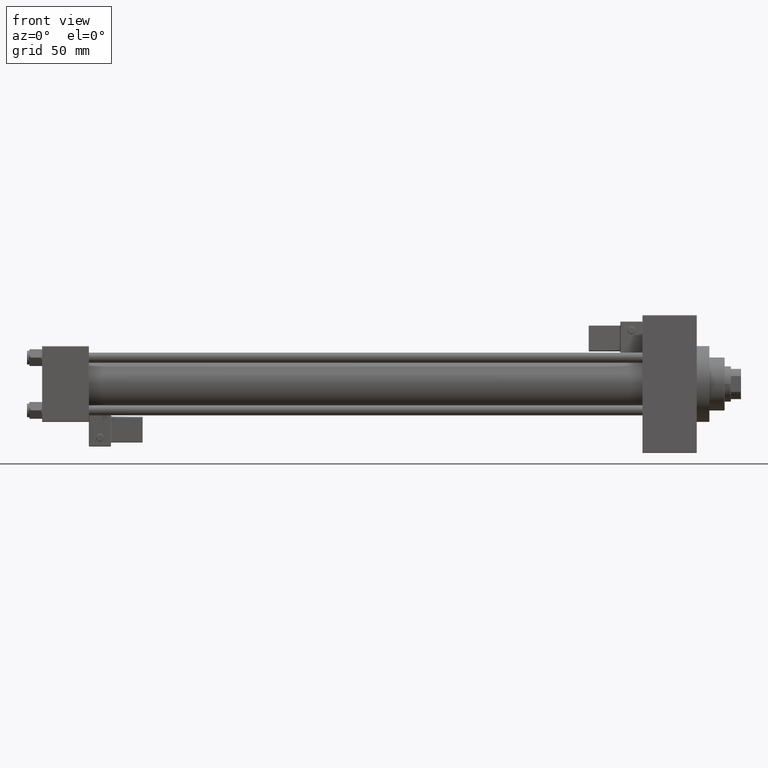
[diagram: clean part render]
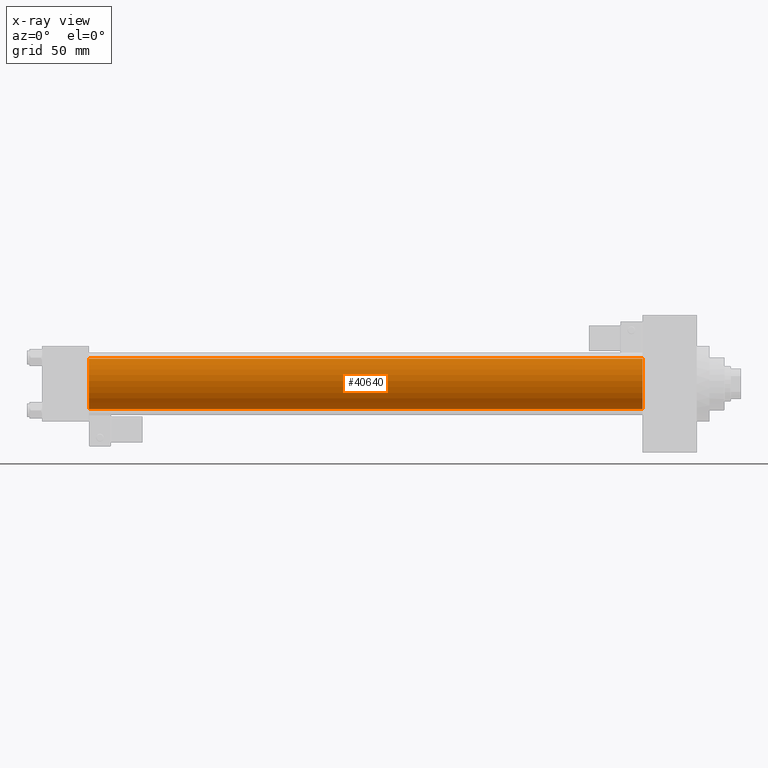
[diagram: x-ray — body ghosted, one internal face saturated and labeled with its STEP entity id]
A machine part, front view, then the same camera in x-ray: the body is ghosted and one INTERNAL B-rep face — a face not visible from any outside direction — is saturated and labeled: STEP entity #40640.
In plain terms, the highlighted cylindrical surface (edge-blend (fillet) strip) has radius 20 mm, axis along (-1, -0, -0).
Its self-contained STEP definition (entity closure, byte-faithful):
#731 = EDGE_CURVE ( 'NONE', #13273, #2124, #47245, .T. ) ;
#2124 = VERTEX_POINT ( 'NONE', #49673 ) ;
#4754 = CIRCLE ( 'NONE', #47325, 20.00000000000000000 ) ;
#4760 = DIRECTION ( 'NONE',  ( -1.000000000000000000, -0.000000000000000000, -0.000000000000000000 ) ) ;
#4820 = VERTEX_POINT ( 'NONE', #10273 ) ;
#4844 = CARTESIAN_POINT ( 'NONE',  ( 475.0000000000000000, -1.527916156705042519E-16, -20.00000000000000000 ) ) ;
#8525 = CARTESIAN_POINT ( 'NONE',  ( 475.0000000000000000, -2.602085213965210642E-15, 20.00000000000000000 ) ) ;
#10273 = CARTESIAN_POINT ( 'NONE',  ( 475.0000000000000000, -1.527916156705042519E-16, -20.00000000000000000 ) ) ;
#11058 = CARTESIAN_POINT ( 'NONE',  ( 37.00000000000000000, -2.602085213965210642E-15, 0.000000000000000000 ) ) ;
#12663 = ORIENTED_EDGE ( 'NONE', *, *, #15618, .T. ) ;
#13273 = VERTEX_POINT ( 'NONE', #18020 ) ;
#13997 = AXIS2_PLACEMENT_3D ( 'NONE', #39525, #28450, #39277 ) ;
#15339 = DIRECTION ( 'NONE',  ( 1.000000000000000000, 0.000000000000000000, 0.000000000000000000 ) ) ;
#15618 = EDGE_CURVE ( 'NONE', #13273, #4820, #4754, .T. ) ;
#16809 = ORIENTED_EDGE ( 'NONE', *, *, #20239, .F. ) ;
#17036 = DIRECTION ( 'NONE',  ( 1.000000000000000000, 0.000000000000000000, 0.000000000000000000 ) ) ;
#18020 = CARTESIAN_POINT ( 'NONE',  ( 475.0000000000000000, -2.602085213965210642E-15, 20.00000000000000000 ) ) ;
#20239 = EDGE_CURVE ( 'NONE', #2124, #34740, #45898, .T. ) ;
#22584 = AXIS2_PLACEMENT_3D ( 'NONE', #11058, #15339, #46016 ) ;
#23940 = CYLINDRICAL_SURFACE ( 'NONE', #13997, 20.00000000000000000 ) ;
#25690 = ORIENTED_EDGE ( 'NONE', *, *, #731, .F. ) ;
#27721 = LINE ( 'NONE', #4844, #31608 ) ;
#28450 = DIRECTION ( 'NONE',  ( -1.000000000000000000, -0.000000000000000000, -0.000000000000000000 ) ) ;
#29866 = EDGE_CURVE ( 'NONE', #4820, #34740, #27721, .T. ) ;
#30756 = EDGE_LOOP ( 'NONE', ( #12663, #38972, #16809, #25690 ) ) ;
#31608 = VECTOR ( 'NONE', #43067, 1000.000000000000000 ) ;
#34167 = VECTOR ( 'NONE', #4760, 1000.000000000000000 ) ;
#34740 = VERTEX_POINT ( 'NONE', #45562 ) ;
#38972 = ORIENTED_EDGE ( 'NONE', *, *, #29866, .T. ) ;
#39277 = DIRECTION ( 'NONE',  ( 0.000000000000000000, 0.000000000000000000, 1.000000000000000000 ) ) ;
#39525 = CARTESIAN_POINT ( 'NONE',  ( 475.0000000000000000, -2.602085213965210642E-15, 0.000000000000000000 ) ) ;
#40201 = CARTESIAN_POINT ( 'NONE',  ( 475.0000000000000000, -2.602085213965210642E-15, 0.000000000000000000 ) ) ;
#40640 = ADVANCED_FACE ( 'NONE', ( #42811 ), #23940, .F. ) ;
#42811 = FACE_OUTER_BOUND ( 'NONE', #30756, .T. ) ;
#43067 = DIRECTION ( 'NONE',  ( -1.000000000000000000, -0.000000000000000000, -0.000000000000000000 ) ) ;
#45562 = CARTESIAN_POINT ( 'NONE',  ( 37.00000000000000000, -1.527916156705042519E-16, -20.00000000000000000 ) ) ;
#45898 = CIRCLE ( 'NONE', #22584, 20.00000000000000000 ) ;
#46016 = DIRECTION ( 'NONE',  ( 0.000000000000000000, 0.000000000000000000, -1.000000000000000000 ) ) ;
#47245 = LINE ( 'NONE', #8525, #34167 ) ;
#47325 = AXIS2_PLACEMENT_3D ( 'NONE', #40201, #17036, #48711 ) ;
#48711 = DIRECTION ( 'NONE',  ( 0.000000000000000000, 0.000000000000000000, -1.000000000000000000 ) ) ;
#49673 = CARTESIAN_POINT ( 'NONE',  ( 37.00000000000000000, -2.602085213965210642E-15, 20.00000000000000000 ) ) ;